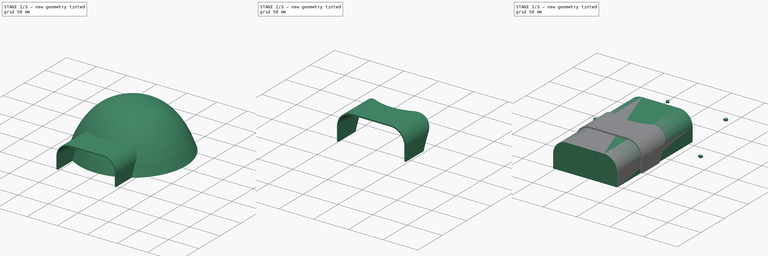
[diagram: build sequence overview — one tinted view per stage of 3, left to right]
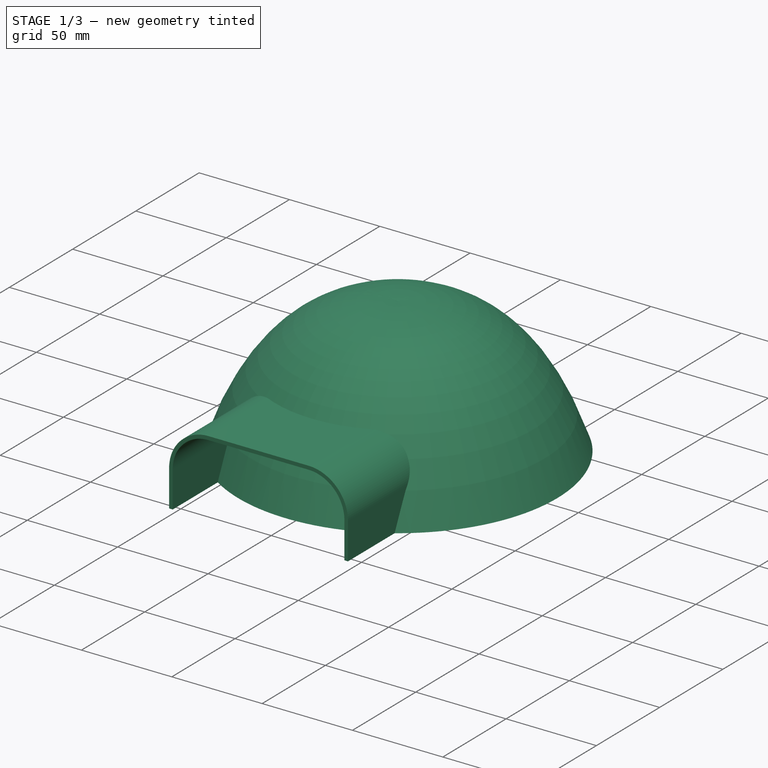
[diagram: stage 1 of 3 — iso view after this stage's code; geometry added in this stage tinted green]
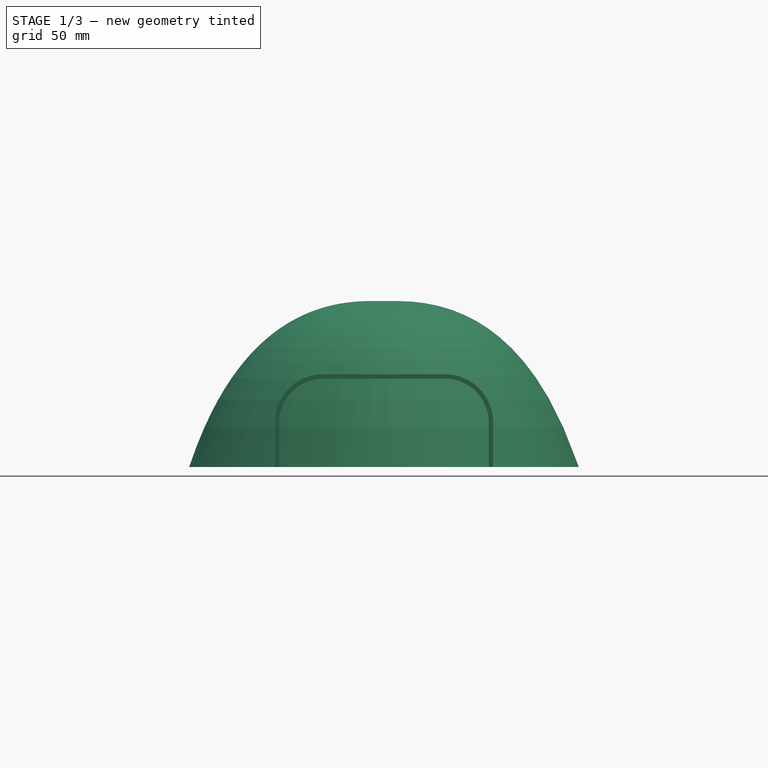
[diagram: stage 1 of 3 — front view after this stage's code; geometry added in this stage tinted green]
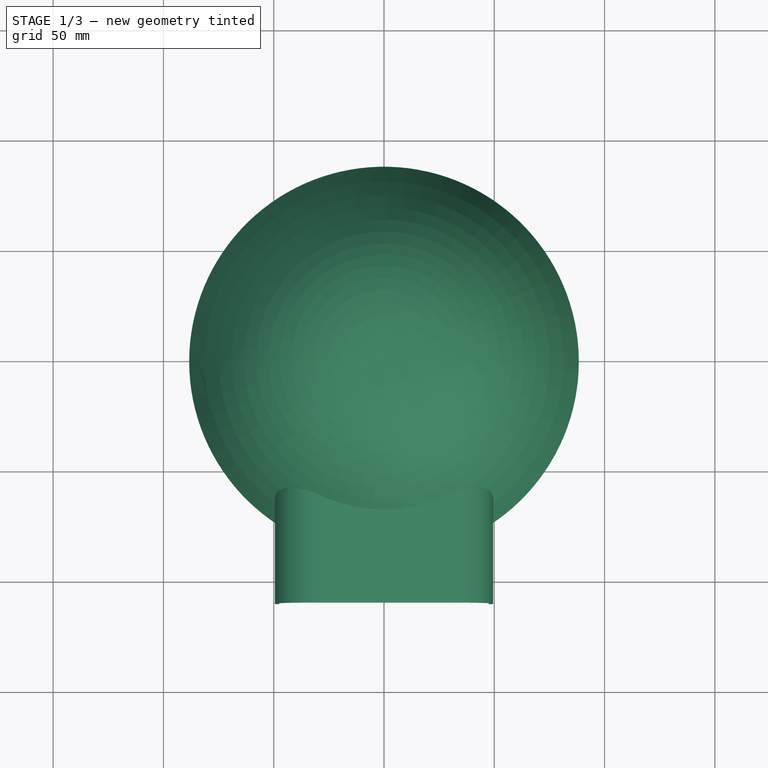
[diagram: stage 1 of 3 — top view after this stage's code; geometry added in this stage tinted green]
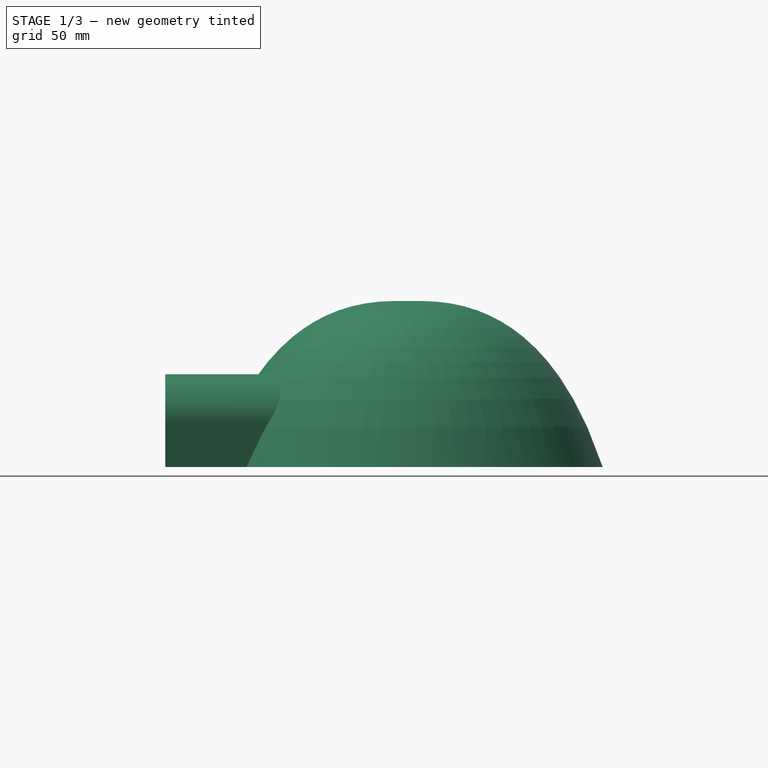
[diagram: stage 1 of 3 — right view after this stage's code; geometry added in this stage tinted green]
FCSTD DOCUMENT  (FreeCAD 2021.1015R24301 +3962 (Git))
Label: antenna_dome
License: All rights reserved
objects: Sketcher::SketchObject×5, Part::Extrusion×3, Part::Revolution×2, Part::Cut×2, Spreadsheet::Sheet×1, App::Part×1
note: 12 computed .brp shape members not serialized (recipe doc carries the construction recipe); baked Part::Feature solids carry a one-line shape summary decoded from their .brp

FEATURE [Sketcher::SketchObject] Sketch003
  FullyConstrained = false
  Placement = pos=(0,0,0) rot=(-1,0,0;4.71239rad)
  sketch-geometry (15):
    g0: LineSegment StartX=-47.5 StartY=0 StartZ=0 EndX=-47.5 EndY=20.1792 EndZ=0
    g1: LineSegment StartX=47.5 StartY=-6.5e-15 StartZ=0 EndX=47.5 EndY=20.1792 EndZ=0
    g2: LineSegment [constr] StartX=-27.6792 StartY=40 StartZ=0 EndX=27.6792 EndY=40 EndZ=0
    g3: ArcOfCircle CenterX=-27.6792 CenterY=20.1792 CenterZ=0 NormalX=0 NormalY=0 NormalZ=1 AngleXU=0 Radius=19.8208 StartAngle=1.5708 EndAngle=3.14159
    g4: ArcOfCircle CenterX=27.6792 CenterY=20.1792 CenterZ=0 NormalX=0 NormalY=0 NormalZ=1 AngleXU=0 Radius=19.8208 StartAngle=1e-16 EndAngle=1.5708
    g5: LineSegment StartX=27.6792 StartY=40 StartZ=0 EndX=-27.6792 EndY=40 EndZ=0
    g6: LineSegment StartX=-47.5 StartY=0 StartZ=0 EndX=-49.5 EndY=0 EndZ=0
    g7: LineSegment StartX=47.5 StartY=-6.5e-15 StartZ=0 EndX=49.5 EndY=0 EndZ=0
    g8: LineSegment StartX=-49.5 StartY=0 StartZ=0 EndX=-49.5 EndY=20.1792 EndZ=0
    g9: LineSegment StartX=49.5 StartY=0 StartZ=0 EndX=49.5 EndY=20.1792 EndZ=0
    g10: LineSegment StartX=-27.6792 StartY=42 StartZ=0 EndX=27.6792 EndY=42 EndZ=0
    g11: ArcOfCircle CenterX=27.6792 CenterY=20.1792 CenterZ=0 NormalX=0 NormalY=0 NormalZ=1 AngleXU=0 Radius=21.8208 StartAngle=0 EndAngle=1.5708
    g12: ArcOfCircle CenterX=-27.6792 CenterY=20.1792 CenterZ=0 NormalX=0 NormalY=0 NormalZ=1 AngleXU=0 Radius=21.8208 StartAngle=1.5708 EndAngle=3.14159
    g13: LineSegment [constr] StartX=27.6792 StartY=20.1792 StartZ=0 EndX=0 EndY=0 EndZ=0
    g14: LineSegment [constr] StartX=-27.6792 StartY=20.1792 StartZ=0 EndX=0 EndY=0 EndZ=0
  constraints (37):
    c: Equal(g1,g0)
    c: Tangent(g0,g3) = 1.5708
    c: Tangent(g2,g3) = 1.5708
    c: Vertical(g0)
    c: Tangent(g1,g4) = -1.5708
    c: Tangent(g2,g4) = 1.5708
    c: Equal(g3,g4)
    c: Vertical(g1)
    c: Coincident(g5,g4)
    c: Coincident(g5,g3)
    c: Coincident(g6,g0)
    c: PointOnObject(g6,g-1)
    c: Coincident(g7,g1)
    c: PointOnObject(g7,g-1)
    c: Equal(g7,g6)
    c: DistanceX(g6,g6) = 2
    c: Coincident(g8,g6)
    c: Vertical(g8)
    c: Coincident(g9,g7)
    c: Vertical(g9)
    c: Horizontal(g10)
    c: Tangent(g9,g11) = -1.5708
    c: Tangent(g10,g11) = 1.5708
    c: Tangent(g8,g12) = 1.5708
    c: Tangent(g10,g12) = 1.5708
    c: Equal(g8,g0)
    c: Equal(g9,g1)
    c: Equal(g10,g5)
    c: DistanceY(g-1,g4) = 40
    c: Coincident(g13,g4)
    c: Coincident(g13,g-1)
    c: Coincident(g14,g3)
    c: Coincident(g14,g13)
    c: Equal(g13,g14)
    c: Horizontal(g5)
    c: DistanceX(g0,g1) = 95
    c: Horizontal(g6)
FEATURE [Part::Extrusion] Extrude003  label="cap"
  Base = -> Sketch003
  Dir = (0,-1,-2e-16)
  DirMode = 2
  FaceMakerClass = Part::FaceMakerBullseye
  InnerTaperAngle = 0
  InnerTaperAngleRev = 0
  LengthFwd = 110
  LengthRev = 0
  Linearize = true
  Solid = true
  Symmetric = false
FEATURE [Part::Cut] Cut001  label="dome_hole"
  Base = -> Revolve
  Tool = -> Extrude
FEATURE [Sketcher::SketchObject] Sketch006
  FullyConstrained = false
  Placement = pos=(0,0,0) rot=(-1,0,0;4.71239rad)
  expr: Constraints[14] = <<vars>>.dome_radius
  expr: Constraints[15] = <<vars>>.dome_height
  sketch-geometry (10):
    g0: Circle [constr] CenterX=-88.333 CenterY=0 CenterZ=0 NormalX=0 NormalY=0 NormalZ=1 AngleXU=0 Radius=1
    g1: Circle [constr] CenterX=-61.873 CenterY=79.23 CenterZ=0 NormalX=0 NormalY=0 NormalZ=1 AngleXU=0 Radius=1
    g2: Circle [constr] CenterX=0 CenterY=75 CenterZ=0 NormalX=0 NormalY=0 NormalZ=1 AngleXU=0 Radius=1
    g3: BSplineCurve PolesCount=3 KnotsCount=2 Degree=2 IsPeriodic=0
    g4: GeomPoint [constr] X=-88.333 Y=0 Z=0
    g5: GeomPoint [constr] X=0 Y=75 Z=0
    g6: LineSegment [constr] StartX=-88.333 StartY=0 StartZ=0 EndX=-61.873 EndY=79.23 EndZ=0
    g7: LineSegment [constr] StartX=-61.873 StartY=79.23 StartZ=0 EndX=0 EndY=75 EndZ=0
    g8: LineSegment StartX=-88.333 StartY=0 StartZ=0 EndX=0 EndY=0 EndZ=0
    g9: LineSegment StartX=0 StartY=0 StartZ=0 EndX=0 EndY=75 EndZ=0
  constraints (22):
    c: PointOnObject(g3,g-1)
    c: Weight(g0) = 1
    c: Equal(g0,g1)
    c: Equal(g0,g2)
    c: PointOnObject(g3,g-2)
    c: InternalAlignment(g0,g3)
    c: InternalAlignment(g1,g3)
    c: InternalAlignment(g2,g3)
    c: InternalAlignment(g4,g3)
    c: InternalAlignment(g5,g3)
    c: Coincident(g6,g3)
    c: Coincident(g6,g1)
    c: Coincident(g7,g1)
    c: Coincident(g7,g3)
    c: DistanceX(g3,g-1) = 88.333
    c: DistanceY(g-1,g3) = 75
    c: DistanceY(g3,g1) = 4.23
    c: DistanceX(g3,g1) = 26.46
    c: Coincident(g8,g-1)
    c: Horizontal(g8)
    c: Coincident(g9,g3)
    c: Vertical(g9)
FEATURE [Part::Revolution] Revolve002  label="neg_dome"
  Angle = 360
  Axis = (0,0,1)
  Base = (0,0,0)
  FaceMakerClass = Part::FaceMakerBullseye
  Solid = true
  Source = -> Sketch006
  Symmetric = false
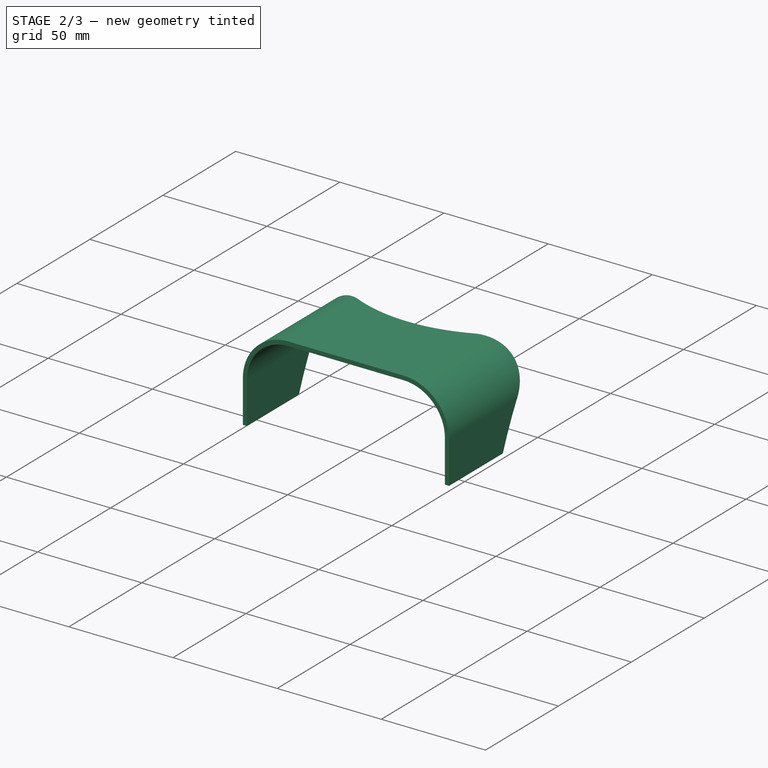
[diagram: stage 2 of 3 — iso view after this stage's code; geometry added in this stage tinted green]
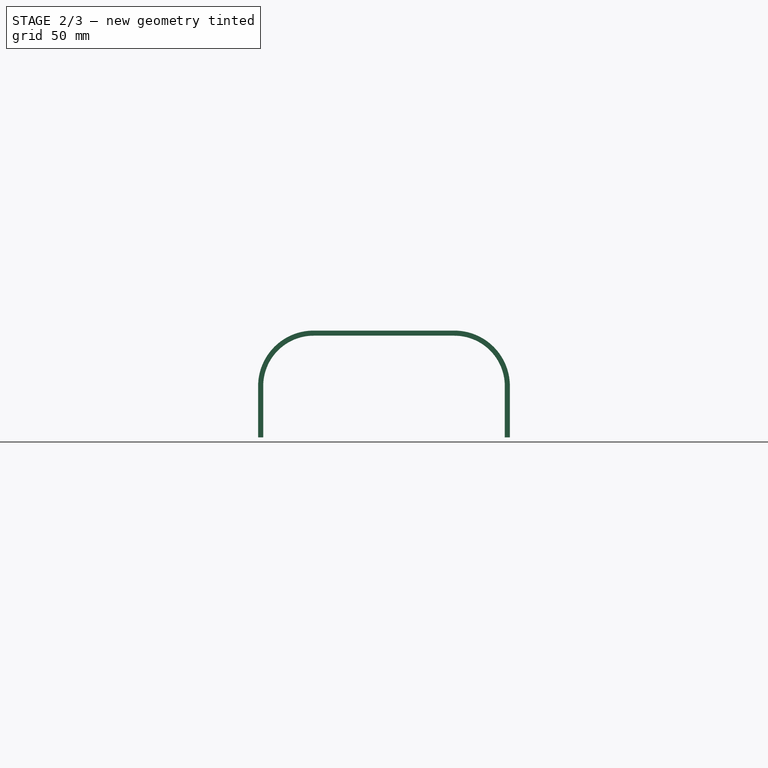
[diagram: stage 2 of 3 — front view after this stage's code; geometry added in this stage tinted green]
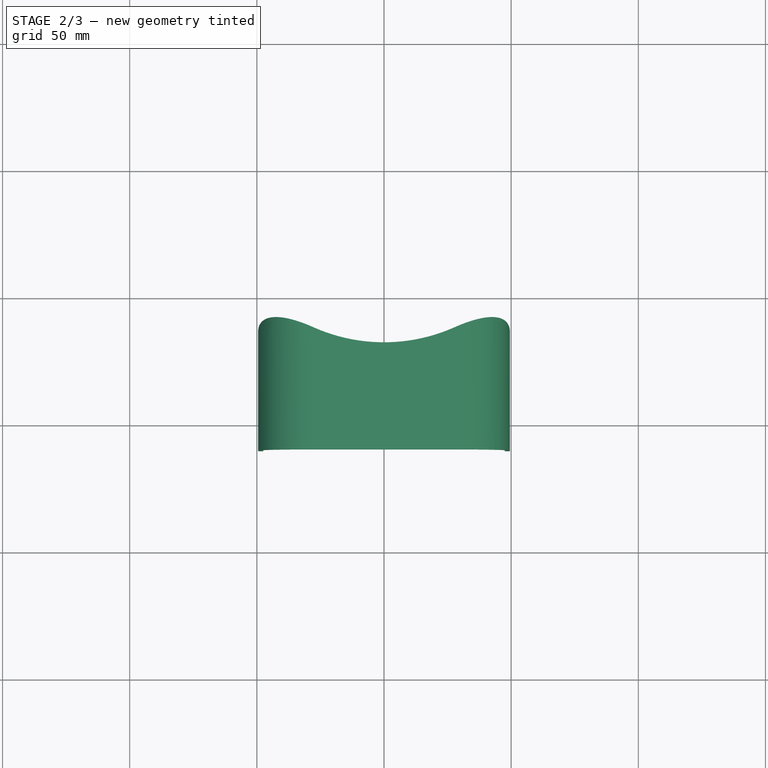
[diagram: stage 2 of 3 — top view after this stage's code; geometry added in this stage tinted green]
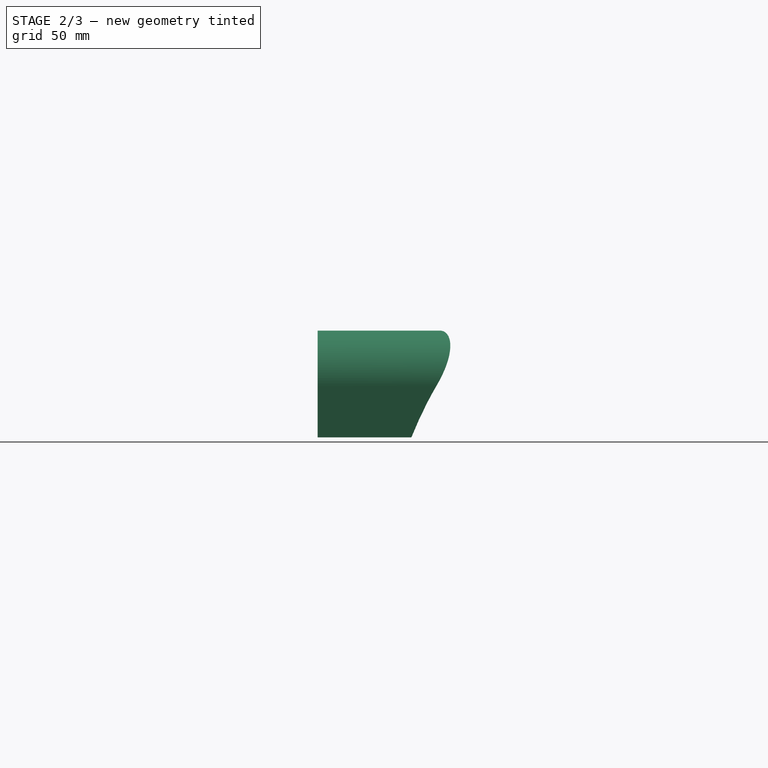
[diagram: stage 2 of 3 — right view after this stage's code; geometry added in this stage tinted green]
FEATURE [Spreadsheet::Sheet] Spreadsheet  label="vars"
  PythonMode = false
  cells = A1='Thickness; B1(wall_thickness)=2; A2=Dome Radius; B2(dome_radius)=88.333; A3=Dome Height; B3(dome_height)=75; A4=Cap Height; B4(cap_height)=40; A5=Cap Width; B5(cap_width)=95; A6=Tab Width; B6(tab_width)=4; A7=Tab Height; B7(tab_height)=2.5; A8=Tab Depth; B8(tab_depth)=4.5
FEATURE [Part::Cut] Cut002  label="pos_cap"
  Base = -> Extrude003
  Tool = -> Revolve002
FEATURE [App::Part] Part001  label="Part"
  ExportMode = 1
  Group = -> [Sketch002,Extrude001,Revolve002,Sketch006,Cut002,Extrude003,Sketch003,Sketch005,Extrude,Cut001,Revolve,Sketch]
  Origin = -> Origin001
  _ExportChildren = -> [Extrude001,Cut002,Cut001]
  _GroupVersion = 1
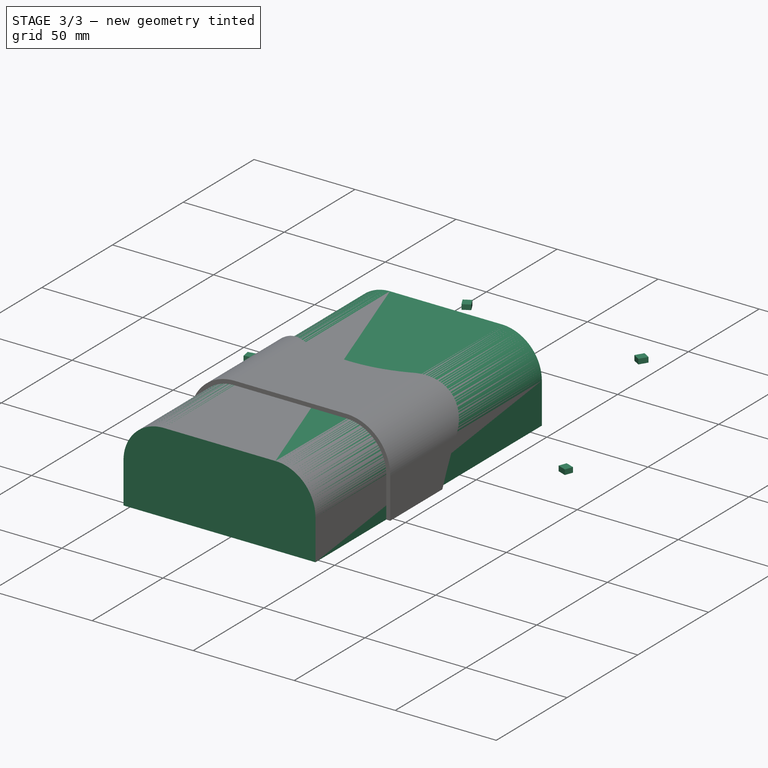
[diagram: stage 3 of 3 — iso view after this stage's code; geometry added in this stage tinted green]
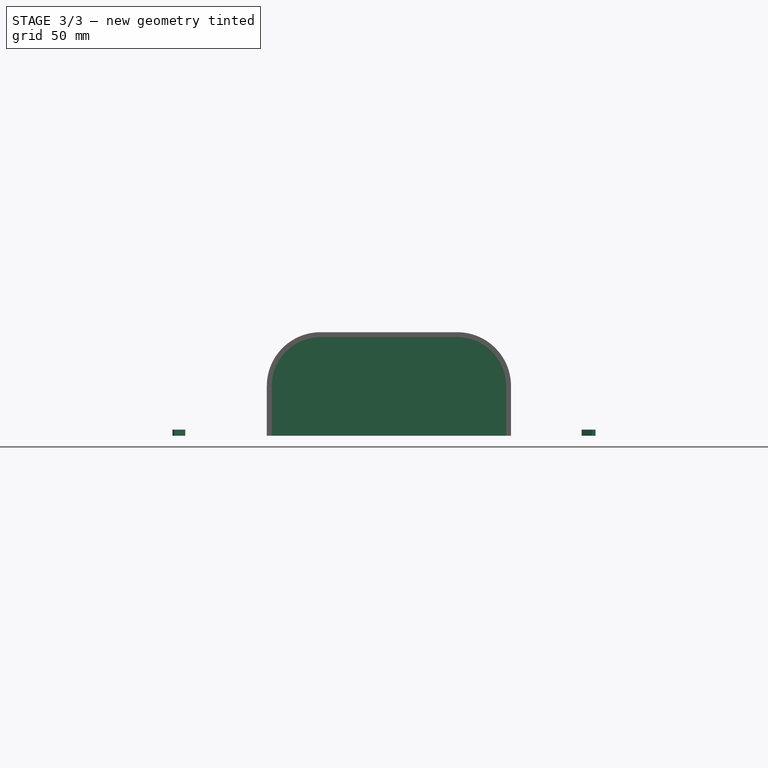
[diagram: stage 3 of 3 — front view after this stage's code; geometry added in this stage tinted green]
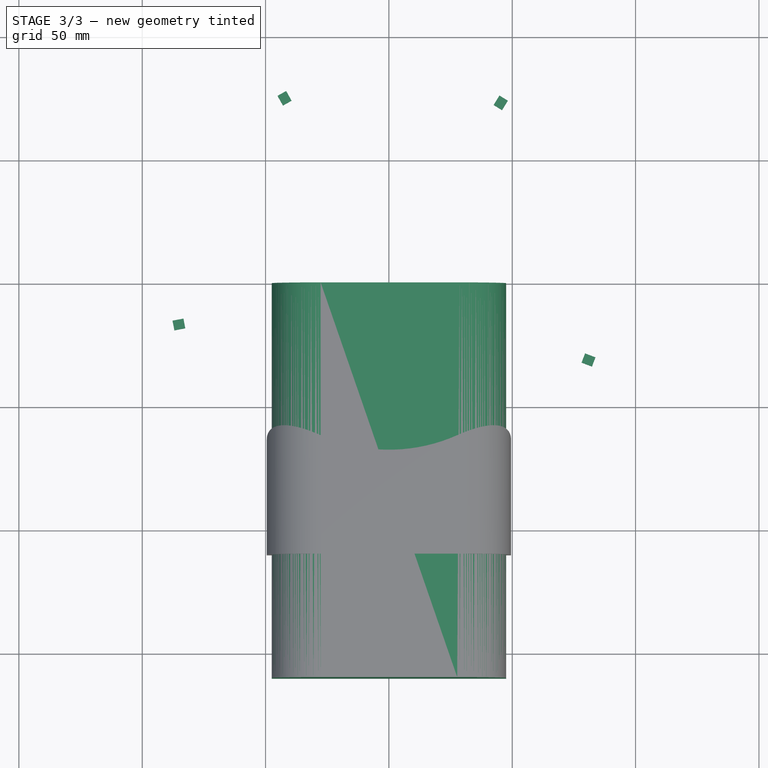
[diagram: stage 3 of 3 — top view after this stage's code; geometry added in this stage tinted green]
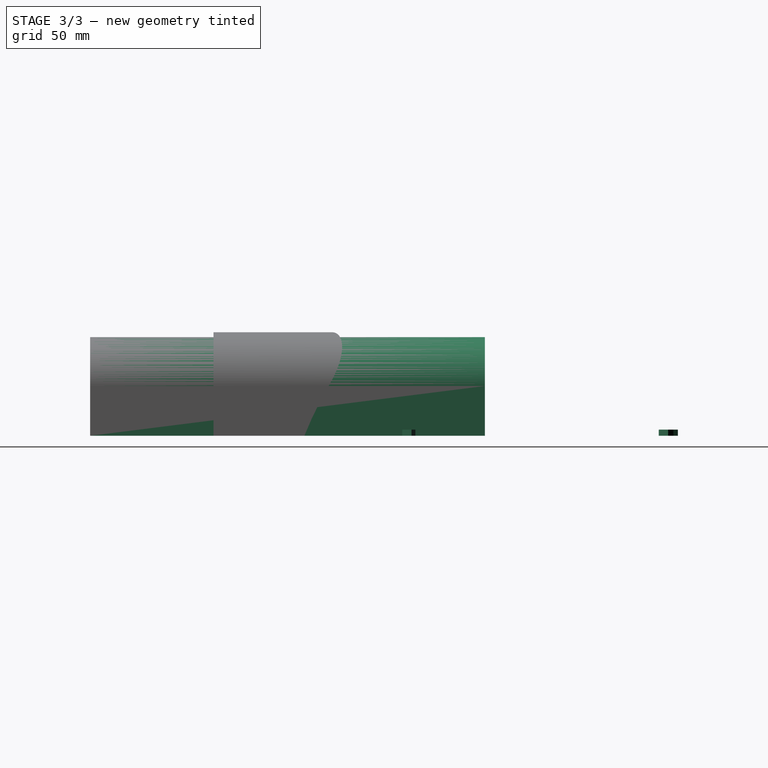
[diagram: stage 3 of 3 — right view after this stage's code; geometry added in this stage tinted green]
FEATURE [Sketcher::SketchObject] Sketch
  FullyConstrained = true
  Placement = pos=(0,0,0) rot=(-1,0,0;4.71239rad)
  expr: Constraints[38] = <<vars>>.dome_radius
  expr: Constraints[39] = <<vars>>.dome_height
  sketch-geometry (19):
    g0: Circle [constr] CenterX=-88.333 CenterY=0 CenterZ=0 NormalX=0 NormalY=0 NormalZ=1 AngleXU=0 Radius=1
    g1: Circle [constr] CenterX=-61.873 CenterY=79.23 CenterZ=0 NormalX=0 NormalY=0 NormalZ=1 AngleXU=0 Radius=1
    g2: Circle [constr] CenterX=0 CenterY=75 CenterZ=0 NormalX=0 NormalY=0 NormalZ=1 AngleXU=0 Radius=1
    g3: BSplineCurve PolesCount=3 KnotsCount=2 Degree=2 IsPeriodic=0
    g4: GeomPoint [constr] X=-88.333 Y=0 Z=0
    g5: GeomPoint [constr] X=0 Y=75 Z=0
    g6: Circle [constr] CenterX=-90.333 CenterY=0 CenterZ=0 NormalX=0 NormalY=0 NormalZ=1 AngleXU=0 Radius=1
    g7: Circle [constr] CenterX=-63.1753 CenterY=81.319 CenterZ=0 NormalX=0 NormalY=0 NormalZ=1 AngleXU=0 Radius=1
    g8: Circle [constr] CenterX=0 CenterY=77 CenterZ=0 NormalX=0 NormalY=0 NormalZ=1 AngleXU=0 Radius=1
    g9: BSplineCurve PolesCount=3 KnotsCount=2 Degree=2 IsPeriodic=0
    g10: GeomPoint [constr] X=-90.333 Y=0 Z=0
    g11: GeomPoint [constr] X=0 Y=77 Z=0
    g12: LineSegment StartX=-88.333 StartY=0 StartZ=0 EndX=-90.333 EndY=0 EndZ=0
    g13: LineSegment StartX=0 StartY=75 StartZ=0 EndX=0 EndY=77 EndZ=0
    g14: LineSegment [constr] StartX=-63.1753 StartY=81.319 StartZ=0 EndX=-61.873 EndY=79.23 EndZ=0
    g15: LineSegment [constr] StartX=-88.333 StartY=0 StartZ=0 EndX=-61.873 EndY=79.23 EndZ=0
    g16: LineSegment [constr] StartX=-61.873 StartY=79.23 StartZ=0 EndX=0 EndY=75 EndZ=0
    g17: LineSegment [constr] StartX=0 StartY=77 StartZ=0 EndX=-63.1753 EndY=81.319 EndZ=0
    g18: LineSegment [constr] StartX=-90.333 StartY=0 StartZ=0 EndX=-63.1753 EndY=81.319 EndZ=0
  constraints (42):
    c: PointOnObject(g3,g-1)
    c: Weight(g0) = 1
    c: Equal(g0,g1)
    c: Equal(g0,g2)
    c: PointOnObject(g3,g-2)
    c: InternalAlignment(g0,g3)
    c: InternalAlignment(g1,g3)
    c: InternalAlignment(g2,g3)
    c: InternalAlignment(g4,g3)
    c: InternalAlignment(g5,g3)
    c: Weight(g6) = 1
    c: Equal(g6,g7)
    c: Equal(g6,g8)
    c: InternalAlignment(g6,g9)
    c: InternalAlignment(g7,g9)
    c: InternalAlignment(g8,g9)
    c: InternalAlignment(g10,g9)
    c: InternalAlignment(g11,g9)
    c: Coincident(g12,g3)
    c: Coincident(g12,g9)
    c: Coincident(g13,g3)
    c: Coincident(g13,g9)
    c: Coincident(g14,g7)
    c: Coincident(g14,g1)
    c: Coincident(g15,g3)
    c: Coincident(g15,g1)
    c: Coincident(g16,g1)
    c: Coincident(g16,g3)
    c: Coincident(g17,g9)
    c: Coincident(g17,g7)
    c: Coincident(g18,g9)
    c: Coincident(g18,g7)
    c: Parallel(g17,g16)
    c: Parallel(g15,g18)
    c: DistanceY(g9,g-1) = 0
    c: DistanceX(g-1,g9) = 0
    c: DistanceX(g9,g3) = 2
    c: DistanceY(g3,g9) = 2
    c: DistanceX(g3,g-1) = 88.333
    c: DistanceY(g-1,g3) = 75
    c: DistanceX(g3,g1) = 26.46
    c: DistanceY(g3,g1) = 4.23
FEATURE [Part::Revolution] Revolve  label="dome"
  Angle = 360
  Axis = (0,0,1)
  Base = (0,0,0)
  FaceMakerClass = Part::FaceMakerBullseye
  Solid = false
  Source = -> Sketch
  Symmetric = false
FEATURE [Sketcher::SketchObject] Sketch002
  FullyConstrained = false
  expr: Constraints[11] = <<vars>>.tab_width
  expr: Constraints[12] = <<vars>>.tab_depth
  expr: Constraints[54] = <<vars>>.dome_radius + 0.5
  sketch-geometry (27):
    g0: Circle [constr] CenterX=-0.0578601 CenterY=-0.277169 CenterZ=0 NormalX=0 NormalY=0 NormalZ=1 AngleXU=0 Radius=88.333
    g1: LineSegment [constr] StartX=46.5171 StartY=75.3672 StartZ=0 EndX=-0.0578601 EndY=-0.277169 EndZ=0
    g2: LineSegment [constr] StartX=-0.0578601 StartY=-0.277169 StartZ=0 EndX=-43.3946 EndY=77.2679 EndZ=0
    g3: LineSegment StartX=-45.1404 StartY=76.2922 StartZ=0 EndX=-41.6487 EndY=78.2436 EndZ=0
    g4: LineSegment StartX=-41.6487 StartY=78.2436 StartZ=0 EndX=-39.4534 EndY=74.3154 EndZ=0
    g5: LineSegment StartX=-39.4534 StartY=74.3154 StartZ=0 EndX=-42.9451 EndY=72.364 EndZ=0
    g6: LineSegment StartX=-42.9451 StartY=72.364 StartZ=0 EndX=-45.1404 EndY=76.2922 EndZ=0
    g7: GeomPoint [constr] X=-43.3946 Y=77.2679 Z=0
    g8: LineSegment StartX=44.814 StartY=76.4158 StartZ=0 EndX=48.2202 EndY=74.3186 EndZ=0
    g9: LineSegment StartX=48.2202 StartY=74.3186 StartZ=0 EndX=45.8608 EndY=70.4867 EndZ=0
    g10: LineSegment StartX=45.8608 StartY=70.4867 StartZ=0 EndX=42.4547 EndY=72.5839 EndZ=0
    g11: LineSegment StartX=42.4547 StartY=72.5839 StartZ=0 EndX=44.814 EndY=76.4158 EndZ=0
    g12: GeomPoint [constr] X=46.5171 Y=75.3672 Z=0
    g13: GeomPoint [constr] X=-87.3351 Y=-16.8299 Z=0
    g14: GeomPoint [constr] X=83.0208 Y=-31.6046 Z=0
    g15: LineSegment [constr] StartX=-87.3351 StartY=-16.8299 StartZ=0 EndX=-0.0578601 EndY=-0.277169 EndZ=0
    g16: LineSegment [constr] StartX=83.0208 StartY=-31.6046 StartZ=0 EndX=0 EndY=0 EndZ=0
    g17: LineSegment StartX=-87.7077 StartY=-14.865 StartZ=0 EndX=-83.2865 EndY=-14.0264 EndZ=0
    g18: LineSegment StartX=-83.2865 StartY=-14.0264 StartZ=0 EndX=-82.5412 EndY=-17.9564 EndZ=0
    g19: LineSegment StartX=-82.5412 StartY=-17.9564 StartZ=0 EndX=-86.9624 EndY=-18.7949 EndZ=0
    g20: LineSegment StartX=-86.9624 StartY=-18.7949 StartZ=0 EndX=-87.7077 EndY=-14.865 EndZ=0
    g21: LineSegment StartX=79.5268 StartY=-28.1345 StartZ=0 EndX=83.7323 EndY=-29.7355 EndZ=0
    g22: LineSegment StartX=83.7323 StartY=-29.7355 StartZ=0 EndX=82.3092 EndY=-33.4738 EndZ=0
    g23: LineSegment StartX=82.3092 StartY=-33.4738 StartZ=0 EndX=78.1037 EndY=-31.8728 EndZ=0
    g24: LineSegment StartX=78.1037 StartY=-31.8728 StartZ=0 EndX=79.5268 EndY=-28.1345 EndZ=0
    g25: GeomPoint [constr] X=-87.3351 Y=-16.8299 Z=0
    g26: GeomPoint [constr] X=83.0208 Y=-31.6046 Z=0
  constraints (61):
    c: Coincident(g1,g0)
    c: Coincident(g2,g0)
    c: Coincident(g3,g4)
    c: Coincident(g4,g5)
    c: Coincident(g5,g6)
    c: Coincident(g6,g3)
    c: Symmetric(g3,g3,g7)
    c: Parallel(g2,g4)
    c: Parallel(g6,g2)
    c: Perpendicular(g4,g5)
    c: Perpendicular(g3,g6)
    c: Distance(g3) = 4
    c: Distance(g6) = 4.5
    c: Coincident(g8,g9)
    c: Coincident(g9,g10)
    c: Coincident(g10,g11)
    c: Coincident(g11,g8)
    c: Parallel(g9,g1)
    c: Parallel(g11,g1)
    c: Perpendicular(g8,g9)
    c: Perpendicular(g10,g11)
    c: Equal(g5,g10)
    c: Equal(g11,g4)
    c: Symmetric(g8,g8,g12)
    c: Coincident(g15,g13)
    c: Coincident(g16,g14)
    c: Coincident(g17,g18)
    c: Coincident(g18,g19)
    c: Coincident(g19,g20)
    c: Coincident(g20,g17)
    c: Coincident(g21,g22)
    c: Coincident(g22,g23)
    c: Coincident(g23,g24)
    c: Coincident(g24,g21)
    c: Parallel(g15,g19)
    c: Parallel(g17,g15)
    c: Perpendicular(g20,g19)
    c: Perpendicular(g17,g18)
    c: Symmetric(g19,g17,g25)
    c: Coincident(g25,g13)
    c: Equal(g5,g18)
    c: Equal(g6,g17)
    c: Perpendicular(g21,g22)
    c: Perpendicular(g23,g24)
    c: Parallel(g21,g16)
    c: Symmetric(g22,g21,g26)
    c: Equal(g10,g24)
    c: Equal(g23,g21)
    c: Equal(g9,g21)
    c: Coincident(g26,g14)
    c: Coincident(g0,g15)
    c: Angle(g2,g15) = 1.24861
    c: Angle(g16,g1) = 1.38265
    c: Angle(g1,g2) = 1.06151
    c: Distance(g16) = 88.833
    c: Coincident(g16,g-1)
    c: Equal(g1,g16)
    c: Coincident(g12,g1)
    c: Equal(g2,g16)
    c: Equal(g15,g16)
    c: Coincident(g7,g2)
FEATURE [Part::Extrusion] Extrude001  label="tab"
  Base = -> Sketch002
  Dir = (0,0,1)
  DirMode = 2
  FaceMakerClass = Part::FaceMakerBullseye
  InnerTaperAngle = 0
  InnerTaperAngleRev = 0
  LengthFwd = 2.5
  LengthRev = 0
  Linearize = true
  Solid = true
  Symmetric = false
FEATURE [Sketcher::SketchObject] Sketch005
  ExternalGeometry = -> [Extrude003]
  FullyConstrained = false
  Placement = pos=(0,0,0) rot=(-1,0,0;4.71239rad)
  sketch-geometry (9):
    g0: LineSegment StartX=-47.5 StartY=2.1e-15 StartZ=0 EndX=-47.5 EndY=20.1792 EndZ=0
    g1: LineSegment StartX=47.5 StartY=-1e-16 StartZ=0 EndX=47.5 EndY=20.1792 EndZ=0
    g2: LineSegment [constr] StartX=-27.6792 StartY=40 StartZ=0 EndX=27.6792 EndY=40 EndZ=0
    g3: ArcOfCircle CenterX=-27.6792 CenterY=20.1792 CenterZ=0 NormalX=0 NormalY=0 NormalZ=1 AngleXU=0 Radius=19.8208 StartAngle=1.5708 EndAngle=3.14159
    g4: ArcOfCircle CenterX=27.6792 CenterY=20.1792 CenterZ=0 NormalX=0 NormalY=0 NormalZ=1 AngleXU=0 Radius=19.8208 StartAngle=1e-16 EndAngle=1.5708
    g5: LineSegment StartX=27.6792 StartY=40 StartZ=0 EndX=-27.6792 EndY=40 EndZ=0
    g6: LineSegment [constr] StartX=27.6792 StartY=20.1792 StartZ=0 EndX=0 EndY=0 EndZ=0
    g7: LineSegment [constr] StartX=-27.6792 StartY=20.1792 StartZ=0 EndX=0 EndY=0 EndZ=0
    g8: LineSegment StartX=-47.5 StartY=2.1e-15 StartZ=0 EndX=47.5 EndY=-1e-16 EndZ=0
  constraints (21):
    c: Equal(g1,g0)
    c: Tangent(g0,g3) = 1.5708
    c: Tangent(g2,g3) = 1.5708
    c: Vertical(g0)
    c: Tangent(g1,g4) = -1.5708
    c: Tangent(g2,g4) = 1.5708
    c: Equal(g3,g4)
    c: Vertical(g1)
    c: Coincident(g5,g4)
    c: Coincident(g5,g3)
    c: DistanceY(g-1,g4) = 40
    c: Coincident(g6,g4)
    c: Coincident(g6,g-1)
    c: Coincident(g7,g3)
    c: Coincident(g7,g6)
    c: Equal(g6,g7)
    c: Horizontal(g5)
    c: DistanceX(g0,g1) = 95
    c: Coincident(g8,g0)
    c: Coincident(g8,g1)
    c: Equal(g3,g-4)
FEATURE [Part::Extrusion] Extrude  label="neg_cap"
  Base = -> Sketch005
  Dir = (0,-1,-2e-16)
  DirMode = 2
  FaceMakerClass = Part::FaceMakerBullseye
  InnerTaperAngle = 0
  InnerTaperAngleRev = 0
  LengthFwd = 160
  LengthRev = 0
  Linearize = true
  Solid = true
  Symmetric = false
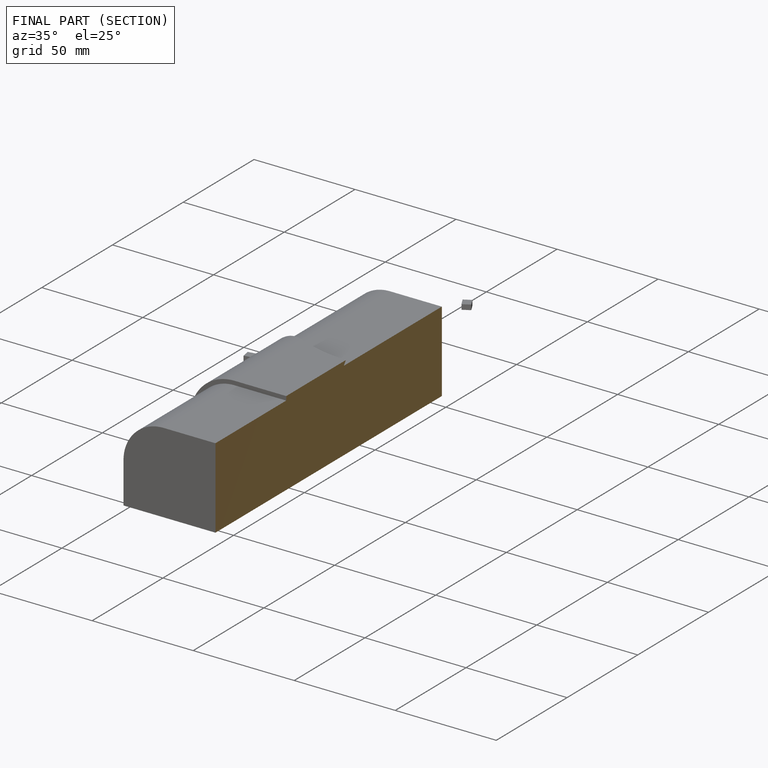
[diagram: finished part — half-section view (interior)]
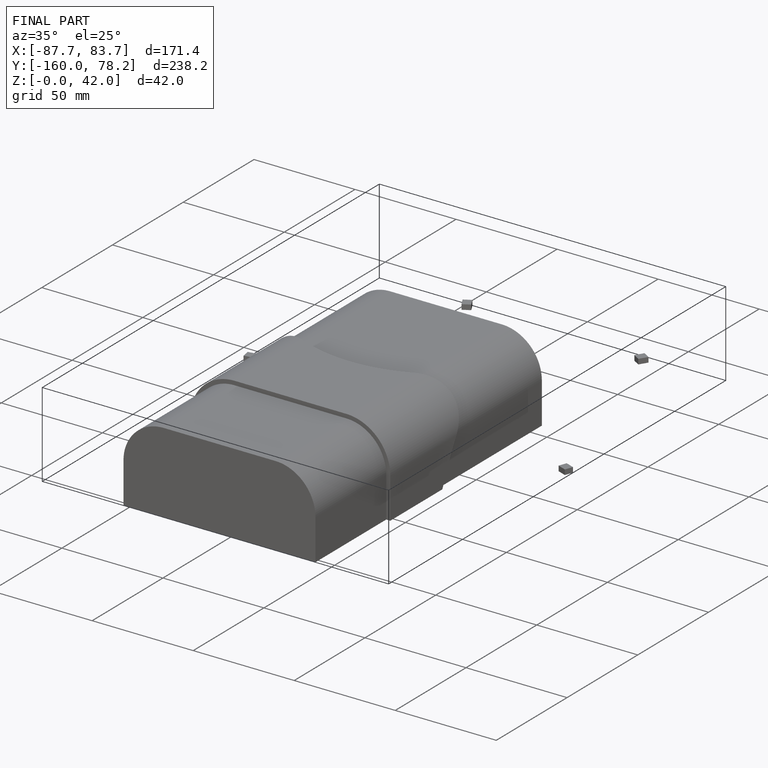
[diagram: finished part — iso view with bounding-box wireframe]
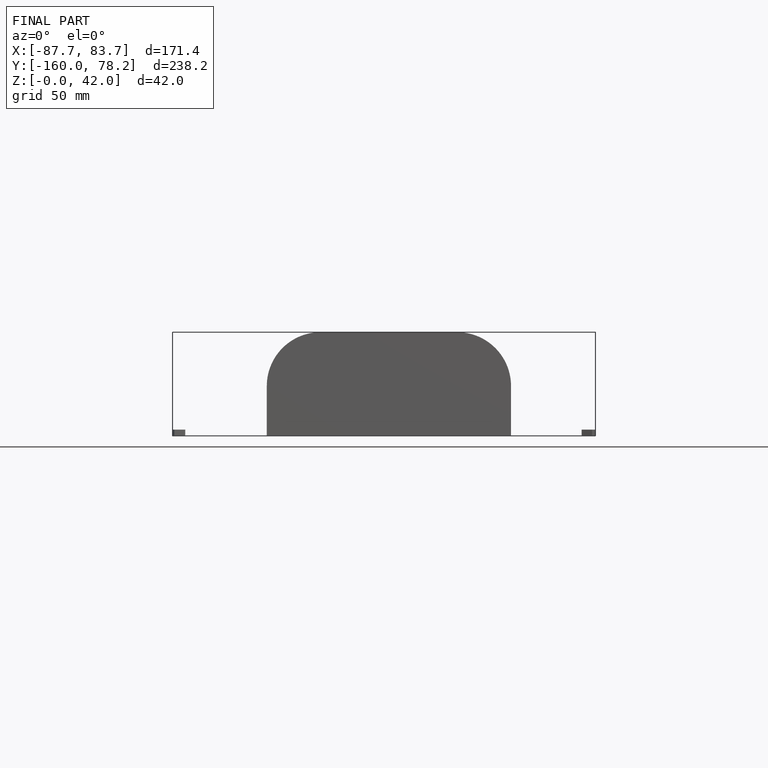
[diagram: finished part — front view with bounding-box wireframe]
